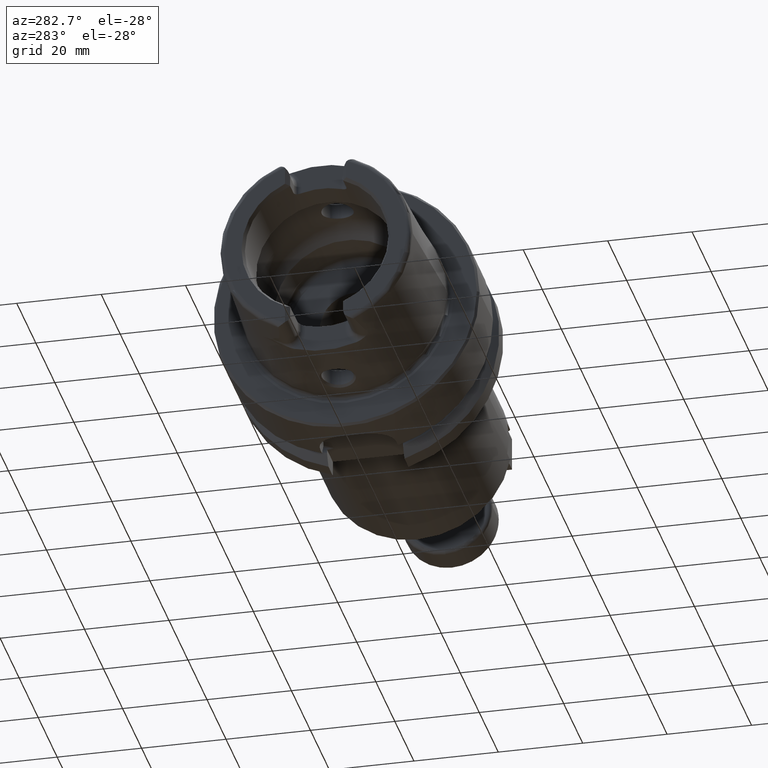
[diagram: clean part render]
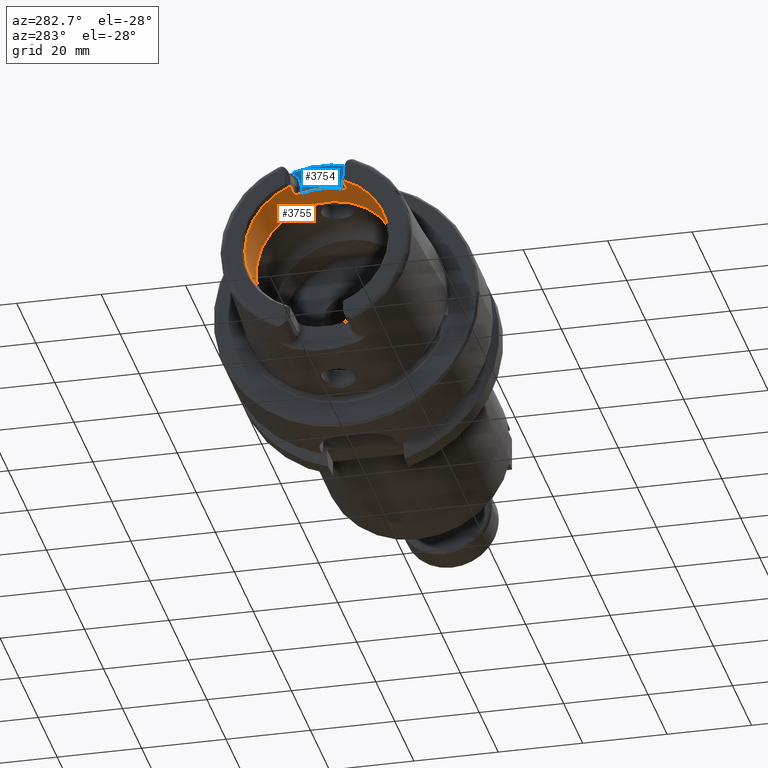
[diagram: same view with the hole feature highlighted: cylindrical wall and planar end face, labeled with their STEP entity ids]
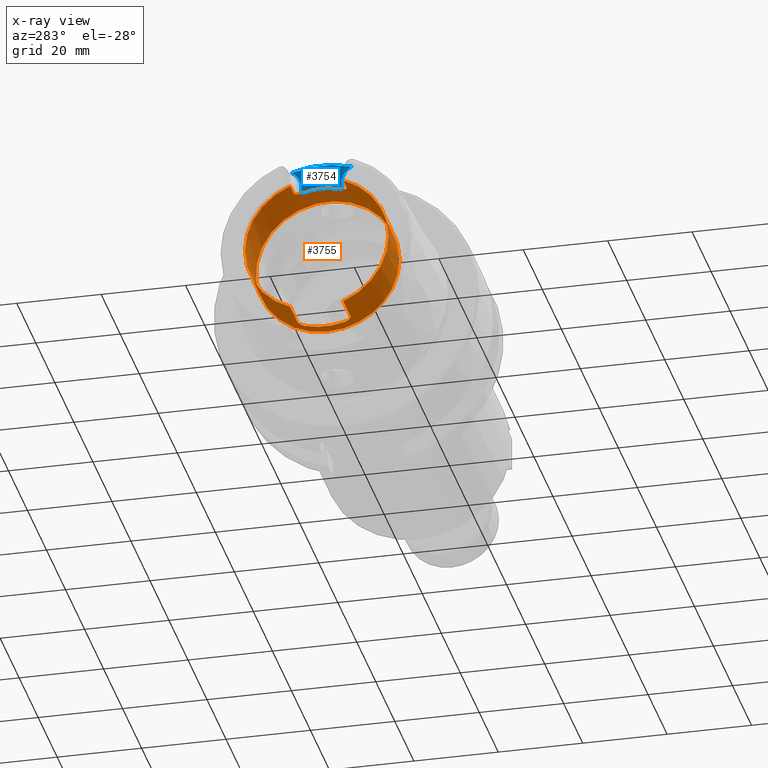
[diagram: x-ray of the same camera — body ghosted, the hole faces saturated]
A machine part, auxiliary view. The highlighted faces form one hole feature of diameter 34 mm: the cylindrical wall (entity #3755, orange) and its adjacent planar end face (entity #3754, blue) — they share a circular edge in the B-rep.
The next image is the same camera in x-ray (body ghosted, the hole faces saturated) — the bore reads through the body.
Wall:
#677=B_SPLINE_CURVE_WITH_KNOTS('',3,(#7095,#7096,#7097,#7098,#7099,#7100,
#7101,#7102,#7103,#7104),.UNSPECIFIED.,.F.,.F.,(4,2,2,2,4),(0.229569660485746,
0.289239803007022,0.348909945528297,0.405407845050218,0.46190574457214),
 .UNSPECIFIED.);
#678=B_SPLINE_CURVE_WITH_KNOTS('',3,(#7113,#7114,#7115,#7116,#7117,#7118,
#7119,#7120,#7121,#7122),.UNSPECIFIED.,.F.,.F.,(4,2,2,2,4),(0.46190574457214,
0.519239917776744,0.576574090981348,0.635410522815223,0.694246954649097),
 .UNSPECIFIED.);
#679=B_SPLINE_CURVE_WITH_KNOTS('',3,(#7131,#7132,#7133,#7134,#7135,#7136,
#7137,#7138,#7139,#7140),.UNSPECIFIED.,.F.,.F.,(4,2,2,2,4),(0.461905744572139,
0.518403644094061,0.574901543615982,0.634571686137257,0.694241828658533),
 .UNSPECIFIED.);
#680=B_SPLINE_CURVE_WITH_KNOTS('',3,(#7154,#7155,#7156,#7157,#7158,#7159,
#7160,#7161,#7162,#7163),.UNSPECIFIED.,.F.,.F.,(4,2,2,2,4),(0.229569660485747,
0.289239803007022,0.348909945528297,0.405407845050218,0.46190574457214),
 .UNSPECIFIED.);
#821=CYLINDRICAL_SURFACE('',#4246,17.);
#952=FACE_OUTER_BOUND('',#1154,.T.);
#1154=EDGE_LOOP('',(#3281,#3282,#3283,#3284,#3285,#3286,#3287,#3288,#3289,
#3290,#3291,#3292,#3293,#3294,#3295,#3296,#3297));
#1286=LINE('',#5934,#1480);
#1292=LINE('',#5950,#1486);
#1298=LINE('',#6005,#1492);
#1302=LINE('',#6071,#1496);
#1364=LINE('',#7178,#1558);
#1480=VECTOR('',#4727,10.);
#1486=VECTOR('',#4741,10.);
#1492=VECTOR('',#4763,10.);
#1496=VECTOR('',#4787,10.);
#1558=VECTOR('',#5107,17.);
#1741=CIRCLE('',#4234,17.);
#1746=CIRCLE('',#4245,17.);
#1747=CIRCLE('',#4247,17.);
#1748=CIRCLE('',#4248,17.);
#1749=CIRCLE('',#4249,17.);
#1750=CIRCLE('',#4250,17.);
#1751=CIRCLE('',#4251,17.);
#1930=VERTEX_POINT('',#5887);
#1937=VERTEX_POINT('',#5933);
#1940=VERTEX_POINT('',#5940);
#1943=VERTEX_POINT('',#5948);
#1951=VERTEX_POINT('',#5995);
#1954=VERTEX_POINT('',#6003);
#1961=VERTEX_POINT('',#6038);
#1966=VERTEX_POINT('',#6070);
#2073=VERTEX_POINT('',#7093);
#2075=VERTEX_POINT('',#7112);
#2077=VERTEX_POINT('',#7130);
#2078=VERTEX_POINT('',#7147);
#2080=VERTEX_POINT('',#7174);
#2081=VERTEX_POINT('',#7175);
#2082=VERTEX_POINT('',#7177);
#2282=EDGE_CURVE('',#1937,#1930,#1286,.T.);
#2290=EDGE_CURVE('',#1940,#1943,#1292,.T.);
#2303=EDGE_CURVE('',#1951,#1954,#1298,.T.);
#2317=EDGE_CURVE('',#1966,#1961,#1302,.T.);
#2483=EDGE_CURVE('',#2073,#1954,#677,.T.);
#2487=EDGE_CURVE('',#1966,#2075,#678,.T.);
#2492=EDGE_CURVE('',#1937,#2077,#679,.T.);
#2496=EDGE_CURVE('',#2078,#2077,#1741,.T.);
#2500=EDGE_CURVE('',#2078,#1943,#680,.T.);
#2504=EDGE_CURVE('',#2073,#2075,#1746,.T.);
#2505=EDGE_CURVE('',#2080,#2081,#1747,.T.);
#2506=EDGE_CURVE('',#2080,#2082,#1364,.T.);
#2507=EDGE_CURVE('',#1951,#2082,#1748,.T.);
#2508=EDGE_CURVE('',#1940,#1961,#1749,.T.);
#2509=EDGE_CURVE('',#2082,#1930,#1750,.T.);
#2510=EDGE_CURVE('',#2081,#2080,#1751,.T.);
#3281=ORIENTED_EDGE('',*,*,#2505,.F.);
#3282=ORIENTED_EDGE('',*,*,#2506,.T.);
#3283=ORIENTED_EDGE('',*,*,#2507,.F.);
#3284=ORIENTED_EDGE('',*,*,#2303,.T.);
#3285=ORIENTED_EDGE('',*,*,#2483,.F.);
#3286=ORIENTED_EDGE('',*,*,#2504,.T.);
#3287=ORIENTED_EDGE('',*,*,#2487,.F.);
#3288=ORIENTED_EDGE('',*,*,#2317,.T.);
#3289=ORIENTED_EDGE('',*,*,#2508,.F.);
#3290=ORIENTED_EDGE('',*,*,#2290,.T.);
#3291=ORIENTED_EDGE('',*,*,#2500,.F.);
#3292=ORIENTED_EDGE('',*,*,#2496,.T.);
#3293=ORIENTED_EDGE('',*,*,#2492,.F.);
#3294=ORIENTED_EDGE('',*,*,#2282,.T.);
#3295=ORIENTED_EDGE('',*,*,#2509,.F.);
#3296=ORIENTED_EDGE('',*,*,#2506,.F.);
#3297=ORIENTED_EDGE('',*,*,#2510,.F.);
#3755=ADVANCED_FACE('',(#952),#821,.F.);
#4234=AXIS2_PLACEMENT_3D('',#7148,#5077,#5078);
#4245=AXIS2_PLACEMENT_3D('',#7172,#5101,#5102);
#4246=AXIS2_PLACEMENT_3D('',#7173,#5103,#5104);
#4247=AXIS2_PLACEMENT_3D('',#7176,#5105,#5106);
#4248=AXIS2_PLACEMENT_3D('',#7179,#5108,#5109);
#4249=AXIS2_PLACEMENT_3D('',#7180,#5110,#5111);
#4250=AXIS2_PLACEMENT_3D('',#7181,#5112,#5113);
#4251=AXIS2_PLACEMENT_3D('',#7182,#5114,#5115);
#4727=DIRECTION('',(-1.,0.,0.));
#4741=DIRECTION('',(1.,0.,0.));
#4763=DIRECTION('',(1.,0.,0.));
#4787=DIRECTION('',(-1.,0.,0.));
#5077=DIRECTION('center_axis',(-1.,0.,0.));
#5078=DIRECTION('ref_axis',(0.,1.,0.));
#5101=DIRECTION('center_axis',(-1.,0.,0.));
#5102=DIRECTION('ref_axis',(0.,1.,0.));
#5103=DIRECTION('center_axis',(-1.,0.,0.));
#5104=DIRECTION('ref_axis',(0.,1.,0.));
#5105=DIRECTION('center_axis',(-1.,0.,0.));
#5106=DIRECTION('ref_axis',(0.,0.,1.));
#5107=DIRECTION('',(-1.,0.,0.));
#5108=DIRECTION('center_axis',(1.,0.,0.));
#5109=DIRECTION('ref_axis',(0.,-1.,0.));
#5110=DIRECTION('center_axis',(1.,0.,0.));
#5111=DIRECTION('ref_axis',(0.,-1.,0.));
#5112=DIRECTION('center_axis',(1.,0.,0.));
#5113=DIRECTION('ref_axis',(0.,-1.,0.));
#5114=DIRECTION('center_axis',(-1.,0.,0.));
#5115=DIRECTION('ref_axis',(0.,0.,1.));
#5887=CARTESIAN_POINT('',(-31.,-6.27,-15.8014904360317));
#5933=CARTESIAN_POINT('',(-23.5,-6.27,-15.8014904360317));
#5934=CARTESIAN_POINT('',(-25.6423502691896,-6.27,-15.8014904360317));
#5940=CARTESIAN_POINT('',(-31.,6.27,-15.8014904360317));
#5948=CARTESIAN_POINT('',(-23.5,6.27,-15.8014904360317));
#5950=CARTESIAN_POINT('',(-25.6423502691896,6.27,-15.8014904360317));
#5995=CARTESIAN_POINT('',(-31.,-6.27,15.8014904360317));
#6003=CARTESIAN_POINT('',(-27.5,-6.27,15.8014904360317));
#6005=CARTESIAN_POINT('',(-25.6423502691896,-6.27,15.8014904360317));
#6038=CARTESIAN_POINT('',(-31.,6.27,15.8014904360317));
#6070=CARTESIAN_POINT('',(-27.5,6.27,15.8014904360317));
#6071=CARTESIAN_POINT('',(-25.6423502691896,6.27,15.8014904360317));
#7093=CARTESIAN_POINT('',(-26.,-4.77,16.3170800083839));
#7095=CARTESIAN_POINT('Ctrl Pts',(-26.,-4.77,16.3170800083839));
#7096=CARTESIAN_POINT('Ctrl Pts',(-26.,-4.96091029208457,16.2612708750845));
#7097=CARTESIAN_POINT('Ctrl Pts',(-26.0385404635846,-5.16378617408596,16.1979610859593));
#7098=CARTESIAN_POINT('Ctrl Pts',(-26.1950909803916,-5.53690543536203,16.0742436586733));
#7099=CARTESIAN_POINT('Ctrl Pts',(-26.3130861154278,-5.70721093092864,16.01400454532));
#7100=CARTESIAN_POINT('Ctrl Pts',(-26.5811791540138,-5.96960590306613,15.9179857910505));
#7101=CARTESIAN_POINT('Ctrl Pts',(-26.7467155703026,-6.082078486584,15.8749745356799));
#7102=CARTESIAN_POINT('Ctrl Pts',(-27.1119229195206,-6.23232125085234,15.8165946761251));
#7103=CARTESIAN_POINT('Ctrl Pts',(-27.3116736682603,-6.27,15.8014904360317));
#7104=CARTESIAN_POINT('Ctrl Pts',(-27.5,-6.27,15.8014904360317));
#7112=CARTESIAN_POINT('',(-26.,4.77,16.3170800083839));
#7113=CARTESIAN_POINT('Ctrl Pts',(-27.5,6.27,15.8014904360317));
#7114=CARTESIAN_POINT('Ctrl Pts',(-27.308886089318,6.27,15.8014904360317));
#7115=CARTESIAN_POINT('Ctrl Pts',(-27.1064099842243,6.23121026569193,15.8170435837256));
#7116=CARTESIAN_POINT('Ctrl Pts',(-26.7371019784685,6.07691823919465,15.8769617281184));
#7117=CARTESIAN_POINT('Ctrl Pts',(-26.5701870418163,5.96150738537594,15.9210500039306));
#7118=CARTESIAN_POINT('Ctrl Pts',(-26.3050641818979,5.69638452545756,16.017853695422));
#7119=CARTESIAN_POINT('Ctrl Pts',(-26.1900212186221,5.52750941197086,16.0774506535614));
#7120=CARTESIAN_POINT('Ctrl Pts',(-26.0374824299787,5.15846789211413,16.1996292802954));
#7121=CARTESIAN_POINT('Ctrl Pts',(-26.,4.95824289522375,16.2620506397863));
#7122=CARTESIAN_POINT('Ctrl Pts',(-26.,4.77,16.3170800083839));
#7130=CARTESIAN_POINT('',(-22.,-4.77,-16.3170800083839));
#7131=CARTESIAN_POINT('Ctrl Pts',(-23.5,-6.27,-15.8014904360317));
#7132=CARTESIAN_POINT('Ctrl Pts',(-23.3116736682603,-6.27,-15.8014904360317));
#7133=CARTESIAN_POINT('Ctrl Pts',(-23.1119229195206,-6.23232125085234,-15.8165946761251));
#7134=CARTESIAN_POINT('Ctrl Pts',(-22.7467155703026,-6.082078486584,-15.8749745356799));
#7135=CARTESIAN_POINT('Ctrl Pts',(-22.5811791540138,-5.96960590306613,-15.9179857910505));
#7136=CARTESIAN_POINT('Ctrl Pts',(-22.3130861154278,-5.70721093092864,-16.01400454532));
#7137=CARTESIAN_POINT('Ctrl Pts',(-22.1950909803916,-5.53690543536204,-16.0742436586733));
#7138=CARTESIAN_POINT('Ctrl Pts',(-22.0385404635846,-5.16378617408596,-16.1979610859593));
#7139=CARTESIAN_POINT('Ctrl Pts',(-22.,-4.96091029208457,-16.2612708750845));
#7140=CARTESIAN_POINT('Ctrl Pts',(-22.,-4.77,-16.3170800083839));
#7147=CARTESIAN_POINT('',(-22.,4.77,-16.3170800083839));
#7148=CARTESIAN_POINT('Origin',(-22.,0.,0.));
#7154=CARTESIAN_POINT('Ctrl Pts',(-22.,4.77,-16.3170800083839));
#7155=CARTESIAN_POINT('Ctrl Pts',(-22.,4.96091029208457,-16.2612708750845));
#7156=CARTESIAN_POINT('Ctrl Pts',(-22.0385404635846,5.16378617408596,-16.1979610859593));
#7157=CARTESIAN_POINT('Ctrl Pts',(-22.1950909803916,5.53690543536204,-16.0742436586733));
#7158=CARTESIAN_POINT('Ctrl Pts',(-22.3130861154278,5.70721093092864,-16.01400454532));
#7159=CARTESIAN_POINT('Ctrl Pts',(-22.5811791540138,5.96960590306613,-15.9179857910505));
#7160=CARTESIAN_POINT('Ctrl Pts',(-22.7467155703026,6.082078486584,-15.8749745356799));
#7161=CARTESIAN_POINT('Ctrl Pts',(-23.1119229195206,6.23232125085234,-15.8165946761251));
#7162=CARTESIAN_POINT('Ctrl Pts',(-23.3116736682603,6.27,-15.8014904360317));
#7163=CARTESIAN_POINT('Ctrl Pts',(-23.5,6.27,-15.8014904360317));
#7172=CARTESIAN_POINT('Origin',(-26.,0.,0.));
#7173=CARTESIAN_POINT('Origin',(-25.6423502691896,0.,0.));
#7174=CARTESIAN_POINT('',(-19.2847005383793,-17.,2.0818995585505E-15));
#7175=CARTESIAN_POINT('',(-19.2847005383793,-2.0818995585505E-15,-17.));
#7176=CARTESIAN_POINT('Origin',(-19.2847005383793,0.,0.));
#7177=CARTESIAN_POINT('',(-31.,-17.,2.0818995585505E-15));
#7178=CARTESIAN_POINT('',(-25.6423502691896,-17.,2.0818995585505E-15));
#7179=CARTESIAN_POINT('Origin',(-31.,0.,0.));
#7180=CARTESIAN_POINT('Origin',(-31.,0.,0.));
#7181=CARTESIAN_POINT('Origin',(-31.,0.,0.));
#7182=CARTESIAN_POINT('Origin',(-19.2847005383793,0.,0.));
End face:
#745=PLANE('',#4244);
#951=FACE_OUTER_BOUND('',#1153,.T.);
#1153=EDGE_LOOP('',(#3275,#3276,#3277,#3278,#3279,#3280));
#1358=LINE('',#7094,#1552);
#1359=LINE('',#7123,#1553);
#1552=VECTOR('',#5043,10.);
#1553=VECTOR('',#5056,10.);
#1689=CIRCLE('',#4124,23.0180260521042);
#1734=CIRCLE('',#4220,4.38);
#1736=CIRCLE('',#4223,4.38);
#1746=CIRCLE('',#4245,17.);
#1978=VERTEX_POINT('',#6285);
#1979=VERTEX_POINT('',#6300);
#2072=VERTEX_POINT('',#7091);
#2073=VERTEX_POINT('',#7093);
#2074=VERTEX_POINT('',#7108);
#2075=VERTEX_POINT('',#7112);
#2335=EDGE_CURVE('',#1978,#1979,#1689,.T.);
#2482=EDGE_CURVE('',#2072,#2073,#1358,.T.);
#2484=EDGE_CURVE('',#1979,#2072,#1734,.T.);
#2486=EDGE_CURVE('',#2074,#1978,#1736,.T.);
#2488=EDGE_CURVE('',#2075,#2074,#1359,.T.);
#2504=EDGE_CURVE('',#2073,#2075,#1746,.T.);
#3275=ORIENTED_EDGE('',*,*,#2484,.F.);
#3276=ORIENTED_EDGE('',*,*,#2335,.F.);
#3277=ORIENTED_EDGE('',*,*,#2486,.F.);
#3278=ORIENTED_EDGE('',*,*,#2488,.F.);
#3279=ORIENTED_EDGE('',*,*,#2504,.F.);
#3280=ORIENTED_EDGE('',*,*,#2482,.F.);
#3754=ADVANCED_FACE('',(#951),#745,.T.);
#4124=AXIS2_PLACEMENT_3D('',#6301,#4801,#4802);
#4220=AXIS2_PLACEMENT_3D('',#7106,#5046,#5047);
#4223=AXIS2_PLACEMENT_3D('',#7110,#5052,#5053);
#4244=AXIS2_PLACEMENT_3D('',#7171,#5099,#5100);
#4245=AXIS2_PLACEMENT_3D('',#7172,#5101,#5102);
#4801=DIRECTION('center_axis',(1.,0.,0.));
#4802=DIRECTION('ref_axis',(0.,1.,0.));
#5043=DIRECTION('',(0.,-1.58830189502884E-16,-1.));
#5046=DIRECTION('center_axis',(-1.,0.,0.));
#5047=DIRECTION('ref_axis',(0.,0.601141749549969,0.799142413433302));
#5052=DIRECTION('center_axis',(-1.,0.,0.));
#5053=DIRECTION('ref_axis',(0.,-0.601141749549969,0.799142413433301));
#5056=DIRECTION('',(0.,-1.58830189502884E-16,1.));
#5099=DIRECTION('center_axis',(-1.,0.,0.));
#5100=DIRECTION('ref_axis',(0.,0.,1.));
#5101=DIRECTION('center_axis',(-1.,0.,0.));
#5102=DIRECTION('ref_axis',(0.,1.,0.));
#6285=CARTESIAN_POINT('',(-26.,7.14127219004964,21.8822246319466));
#6300=CARTESIAN_POINT('',(-26.,-7.14127219004964,21.8822246319466));
#6301=CARTESIAN_POINT('Origin',(-26.,0.,0.));
#7091=CARTESIAN_POINT('',(-26.,-4.77,17.99));
#7093=CARTESIAN_POINT('',(-26.,-4.77,16.3170800083839));
#7094=CARTESIAN_POINT('',(-26.,-4.77,14.75));
#7106=CARTESIAN_POINT('Origin',(-26.,-9.15,17.99));
#7108=CARTESIAN_POINT('',(-26.,4.77,17.99));
#7110=CARTESIAN_POINT('Origin',(-26.,9.15,17.99));
#7112=CARTESIAN_POINT('',(-26.,4.77,16.3170800083839));
#7123=CARTESIAN_POINT('',(-26.,4.77,18.245));
#7171=CARTESIAN_POINT('Origin',(-26.,-2.22044604925031E-15,18.5));
#7172=CARTESIAN_POINT('Origin',(-26.,0.,0.));